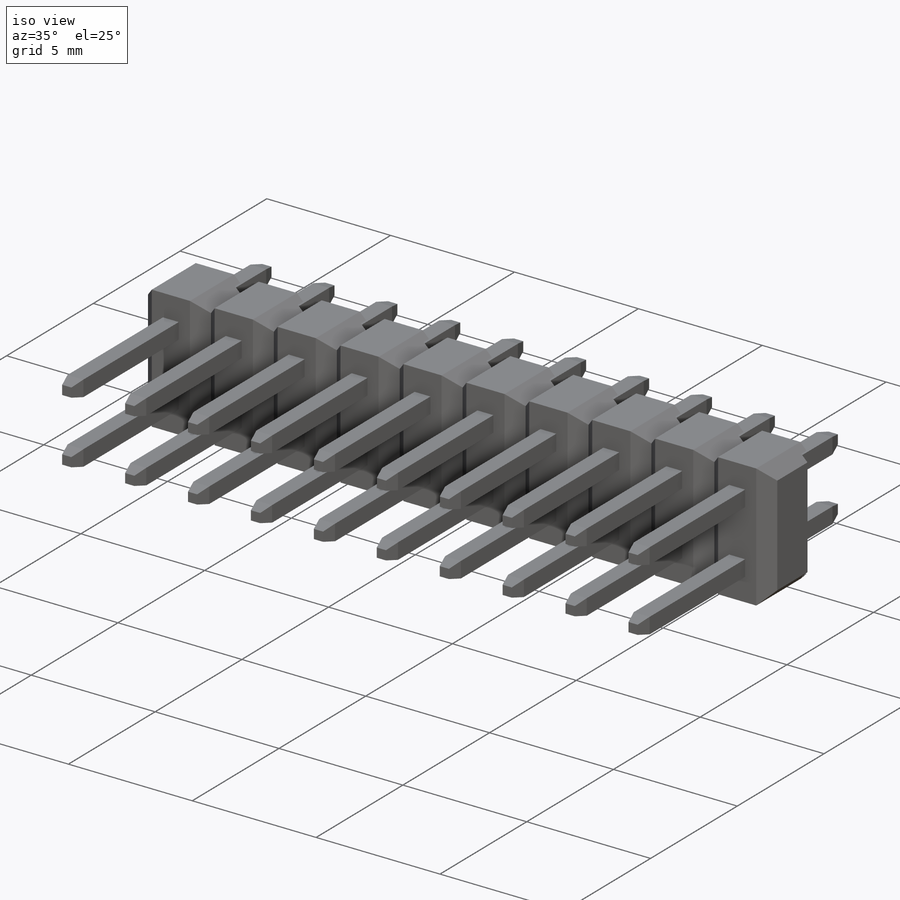
[diagram: iso view]
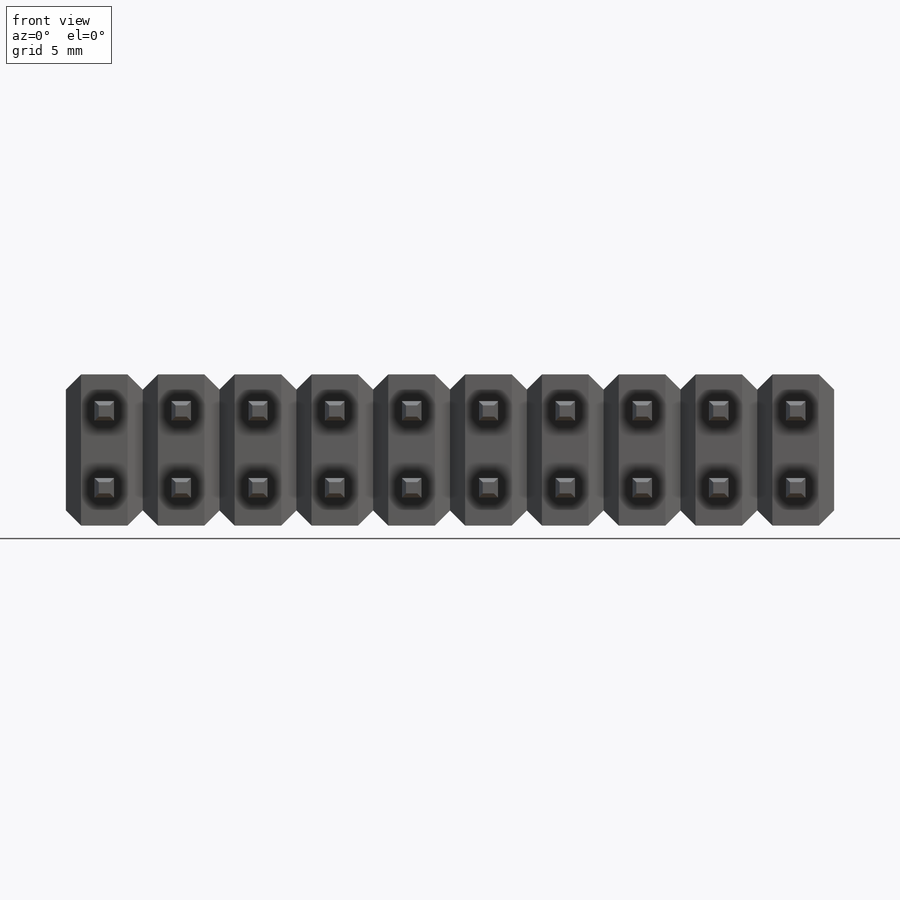
[diagram: front view]
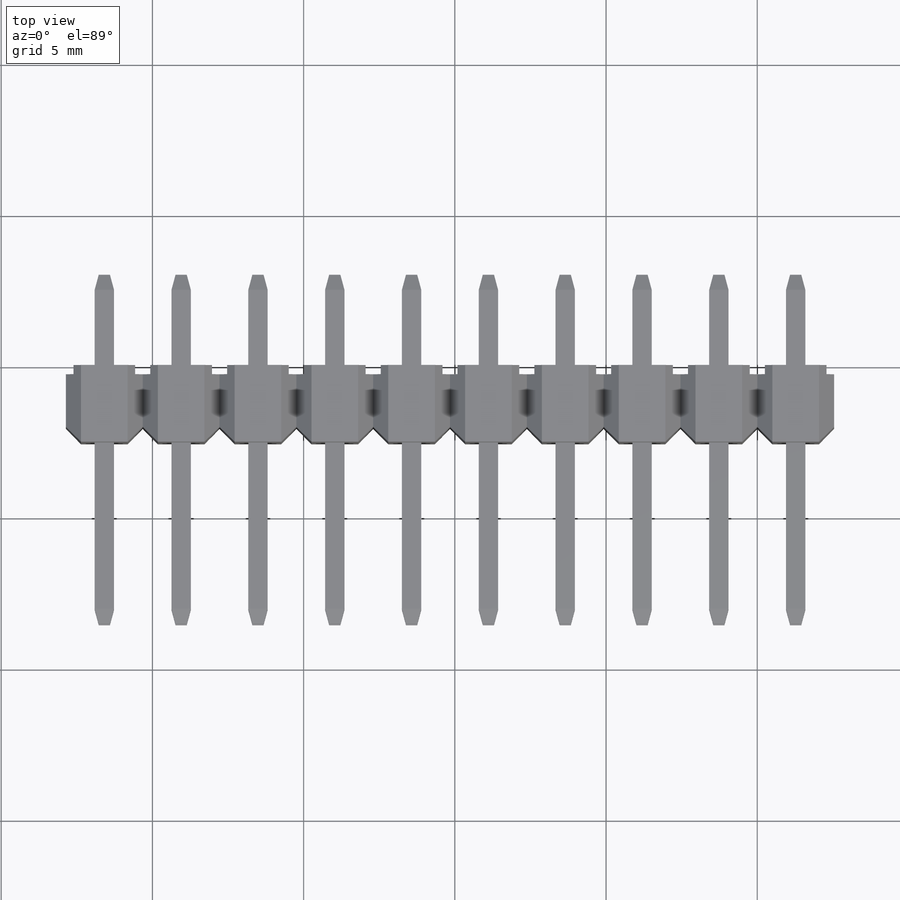
[diagram: top view]
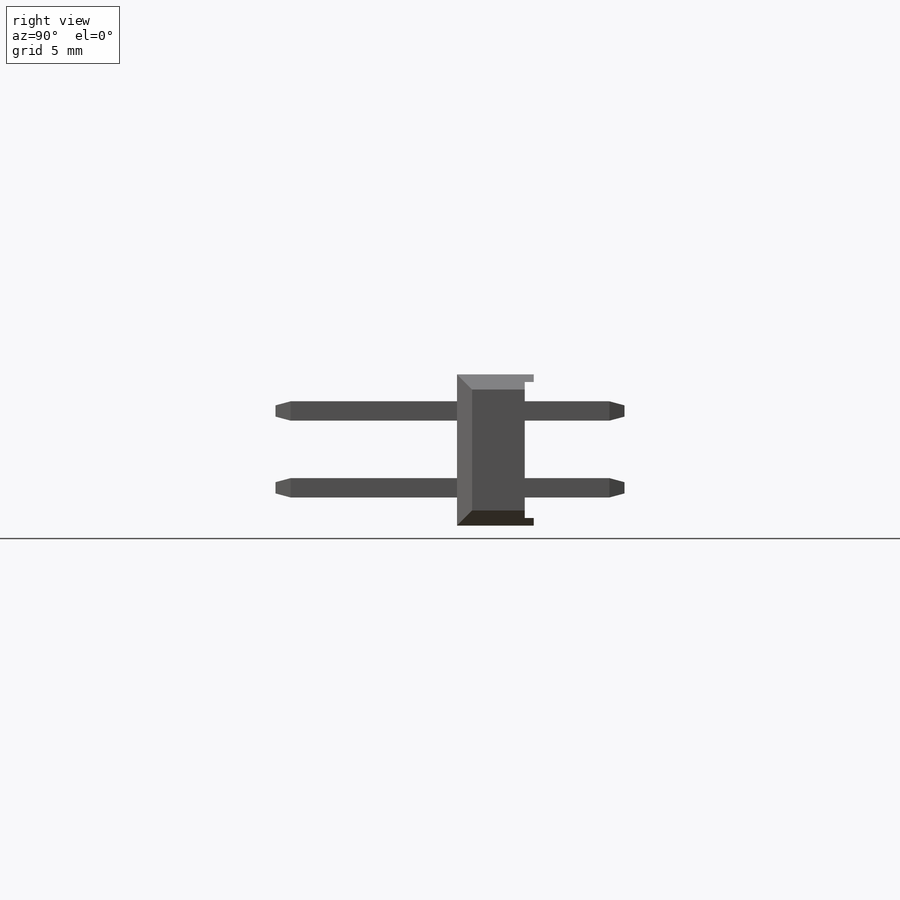
[diagram: right view]
SOLIDWORKS PART (.sldprt)
format: sldprt  version: not decoded by parser v0  size: 581,632 bytes
history: native  units: mm
features: sketch x4, chamfer x4, extrude x3, pattern_linear x3, material x1, cut_extrude x1 (+13 scaffold rows collapsed)
feature tree (29):
  scaffold x13  (default folders/planes/origin — collapsed)
  material  "Material <not specified>"
  sketch  "Sketch2"  dims[length=2.54mm width=5.0mm]
  extrude  "Boss-Extrude1"  Depth=2.54mm
  sketch  "Sketch3"  dims[D1=0.25mm D2=0.3mm]
  cut_extrude  "Cut-Extrude1"  [1 undecoded]
  chamfer  "Chamfer1"  Distance=0.5mm Angle=45deg
  chamfer  "Chamfer2"  Distance=0.5mm Angle=45deg
  sketch  "Sketch4"  dims[D1=1.25mm D2=0.64mm]
  extrude  "Boss-Extrude2"  Depth=6mm
  sketch  "Sketch6"
  extrude  "Boss-Extrude3"  Depth=3.3mm
  chamfer  "Chamfer3"  Distance=0.5mm Angle=15deg
  chamfer  "Chamfer4"  Distance=0.5mm Angle=15deg
  pattern_linear  "LPattern11"  Count1=2 Count2=1 Spacing1=2.54mm Spacing2=10mm
  pattern_linear  "LPattern12"  Count1=10 Count2=1 Spacing1=2.54mm Spacing2=10mm
  pattern_linear  "LPattern13"  Count1=10 Count2=1 Spacing1=2.54mm Spacing2=10mm
decode coverage: 13 of 15 modeling features carry decoded parameters
note: 1 parameter value undecoded
note: suppression state not decoded; provenance and decode notes live in map.json
